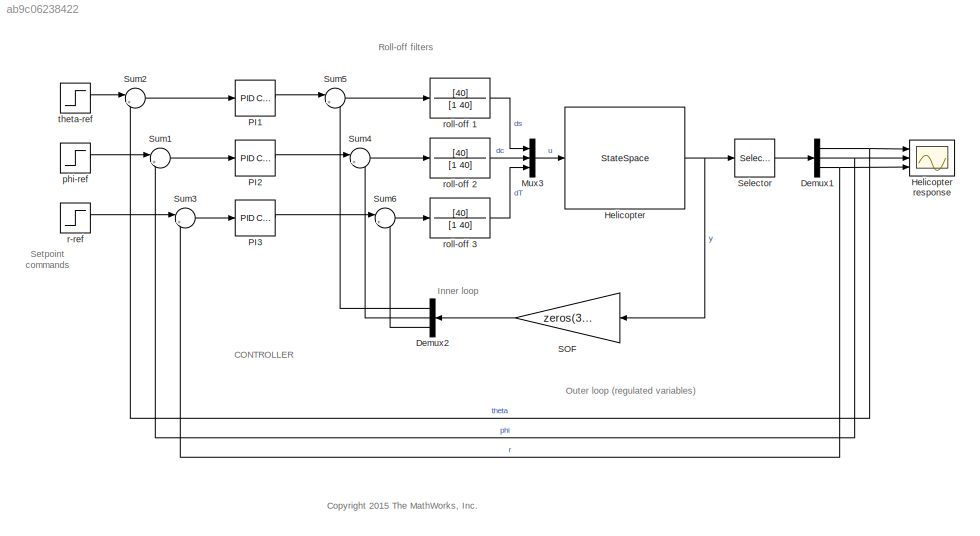
MODEL slx_ab9c06238422
KIND model
CONFIG AbsTol = auto
CONFIG EnableMultiTasking = on
CONFIG FixedStep = auto
CONFIG MaxStep = auto
CONFIG MinStep = auto
CONFIG RelTol = 1e-3
CONFIG SampleTimeConstraint = Unconstrained
CONFIG SolverName = ode45
CONFIG StartTime = 0.0
CONFIG StopTime = 10.0
WORKSPACE source: mxarray member
WORKSPACE A = [-0.0191 0.0136 0.0405 0 0.001 0.013 0 0.002 0.017 -0.2994 -0.0026 0 ... (64 elements, 8x8)]
WORKSPACE B = [-10.3456 -0.7293 27.09 0 -1.082 -27.2884 0 -4.8969 1.0793 0.0755 -4.7239 0 ... (24 elements, 8x3)]
WORKSPACE Cmeas = [0 0 0 0 0 0 0 0 0 0 0 0 ... (40 elements, 5x8)]
BLOCK [Demux] Demux1
  Outputs = 3
  Ports = [1, 3]
BLOCK [Demux] Demux2
  Outputs = 3
  Ports = [1, 3]
BLOCK [StateSpace] Helicopter
  A = A
  B = B
  C = Cmeas
  D = zeros(5,3)
  InitialCondition = 0
  Ports = [1, 1]
BLOCK [Scope] Helicopter response
  Floating = off
  NumInputPorts = 3
  Ports = [3]
  ScopeSpecificationString = C++SS(StrPVP('Location','[278, 407, 811, 778]'),StrPVP('Open','off'),MxPVP('AxesTitles',54,'struct(''axes1'',''%<SignalLabel>'',''axes2'',''%<SignalLabel>'',''axes3'',''%<SignalLabel>'')'),MxPVP('ScopeGraphics',57,'struct(''FigureColor'',''[0.501960784313725 0.501960784313725 0.501960784313725]'',''AxesColor'',''[0 0 0]'',''AxesTickColor'',''[1 1 1]'',''LineColors'',''[1 1 0;1 0 1;0 1 1;1 0 0;0 1 ...<+388ch>
BLOCK [Mux] Mux3
  DisplayOption = bar
  Inputs = 3
  Ports = [3, 1]
BLOCK [Reference] PI1  REF=slpidlib/PID Controller
  Ports = [1, 1]
  SourceBlock = slpidlib/PID Controller
  SourceProductBaseCode = SL
  SourceType = PID 1dof
BLOCK [Reference] PI2  REF=slpidlib/PID Controller
  Ports = [1, 1]
  SourceBlock = slpidlib/PID Controller
  SourceProductBaseCode = SL
  SourceType = PID 1dof
BLOCK [Reference] PI3  REF=slpidlib/PID Controller
  Ports = [1, 1]
  SourceBlock = slpidlib/PID Controller
  SourceProductBaseCode = SL
  SourceType = PID 1dof
BLOCK [Gain] SOF
  Gain = zeros(3,5)
  Multiplication = Matrix(K*u) (u vector)
BLOCK [Selector] Selector
  IndexOptions = Index vector (dialog)
  Indices = [1 2 3]
  InputPortWidth = 5
  OutputSizes = 1
  Ports = [1, 1]
BLOCK [Sum] Sum1
  Inputs = |+-
  Ports = [2, 1]
BLOCK [Sum] Sum2
  Inputs = |+-
  Ports = [2, 1]
BLOCK [Sum] Sum3
  Inputs = |+-
  Ports = [2, 1]
BLOCK [Sum] Sum4
  Inputs = |+-
  Ports = [2, 1]
BLOCK [Sum] Sum5
  Inputs = |+-
  Ports = [2, 1]
BLOCK [Sum] Sum6
  Inputs = |+-
  Ports = [2, 1]
BLOCK [Step] phi-ref
  SampleTime = 0
  Time = 3
BLOCK [Step] r-ref
  SampleTime = 0
  Time = 6
BLOCK [TransferFcn] roll-off 1
  Denominator = [1 40]
  Numerator = [40]
BLOCK [TransferFcn] roll-off 2
  Denominator = [1 40]
  Numerator = [40]
BLOCK [TransferFcn] roll-off 3
  Denominator = [1 40]
  Numerator = [40]
BLOCK [Step] theta-ref
  SampleTime = 0
  Time = 0
ANNOTATION (root): <copyright redacted>
ANNOTATION (root): CONTROLLER
ANNOTATION (root): Inner loop
ANNOTATION (root): Outer loop (regulated variables)
ANNOTATION (root): Roll-off filters
ANNOTATION (root): Setpoint commands
NET Demux1:1 -> Helicopter response:1, Sum2:2
NET Demux1:2 -> Helicopter response:2, Sum1:2
NET Demux1:3 -> Helicopter response:3, Sum3:2
LINE Demux2:1 -> Sum5:2
LINE Demux2:2 -> Sum4:2
LINE Demux2:3 -> Sum6:2
NET Helicopter:1 -> SOF:1, Selector:1
LINE Mux3:1 -> Helicopter:1
LINE PI1:1 -> Sum5:1
LINE PI2:1 -> Sum4:1
LINE PI3:1 -> Sum6:1
LINE SOF:1 -> Demux2:1
LINE Selector:1 -> Demux1:1
LINE Sum1:1 -> PI2:1
LINE Sum2:1 -> PI1:1
LINE Sum3:1 -> PI3:1
LINE Sum4:1 -> roll-off 2:1
LINE Sum5:1 -> roll-off 1:1
LINE Sum6:1 -> roll-off 3:1
LINE phi-ref:1 -> Sum1:1
LINE r-ref:1 -> Sum3:1
LINE roll-off 1:1 -> Mux3:1
LINE roll-off 2:1 -> Mux3:2
LINE roll-off 3:1 -> Mux3:3
LINE theta-ref:1 -> Sum2:1
note: NET lines group one-source signal fan-out (src -> all destinations, sorted); 1:1 wires keep LINE
